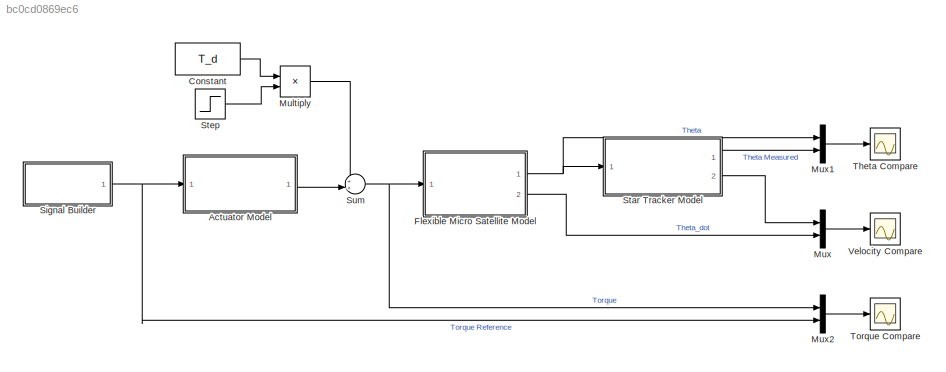
MODEL slx_bc0cd0869ec6
KIND model
CONFIG AbsTol = auto
CONFIG EnableMultiTasking = off
CONFIG FixedStep = auto
CONFIG MaxStep = auto
CONFIG MinStep = auto
CONFIG RelTol = 1e-3
CONFIG SampleTimeConstraint = Unconstrained
CONFIG Solver = VariableStepAuto
CONFIG SolverName = VariableStepAuto
CONFIG StartTime = 0.0
CONFIG StopTime = 200
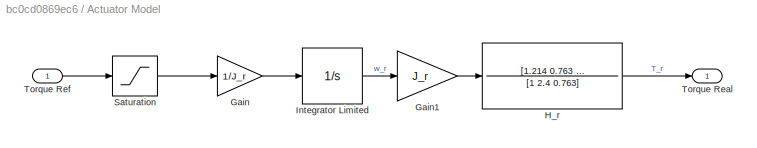
BLOCK [SubSystem] Actuator Model
  Ports = [1, 1]
  RequestExecContextInheritance = off
BLOCK [Gain] Actuator Model/Gain
  Gain = 1/J_r
  OutDataTypeStr = Inherit: Inherit via internal rule
  ParamDataTypeStr = Inherit: Inherit via internal rule
  SaturateOnIntegerOverflow = off
BLOCK [Gain] Actuator Model/Gain1
  Gain = J_r
  OutDataTypeStr = Inherit: Inherit via internal rule
  ParamDataTypeStr = Inherit: Inherit via internal rule
  SaturateOnIntegerOverflow = off
BLOCK [TransferFcn] Actuator Model/H_r
  Denominator = [1 2.4 0.763]
  Numerator = [1.214 0.763 0]
BLOCK [Integrator] Actuator Model/Integrator Limited
  LimitOutput = on
  LowerSaturationLimit = 0
  Ports = [1, 1]
  UpperSaturationLimit = w_sat
BLOCK [Saturate] Actuator Model/Saturation
  InputPortMap = u0
  LowerLimit = -Tc_max
  Ports = [1, 1]
  UpperLimit = Tc_max
BLOCK [Outport] Actuator Model/Torque Real
  IconDisplay = Port number
BLOCK [Inport] Actuator Model/Torque Ref
  IconDisplay = Port number
BLOCK [Constant] Constant
  Value = T_d
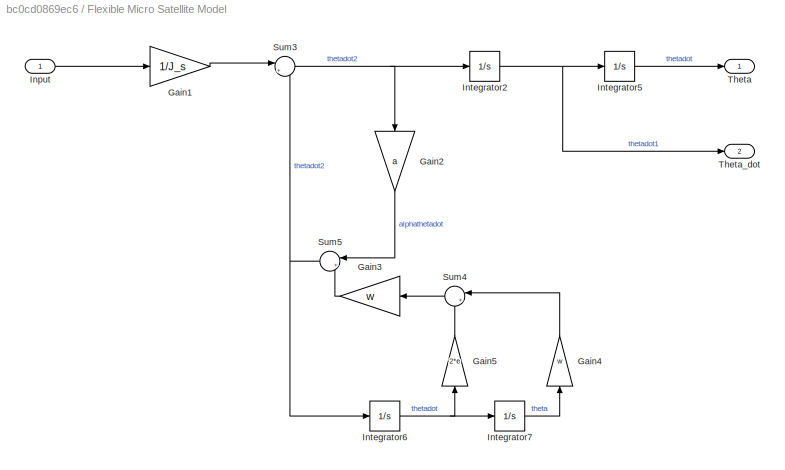
BLOCK [SubSystem] Flexible Micro Satellite Model 
  Ports = [1, 2]
  RequestExecContextInheritance = off
BLOCK [Gain] Flexible Micro Satellite Model /Gain1
  Gain = 1/J_s
  OutDataTypeStr = Inherit: Inherit via internal rule
  ParamDataTypeStr = Inherit: Inherit via internal rule
  SaturateOnIntegerOverflow = off
BLOCK [Gain] Flexible Micro Satellite Model /Gain2
  Gain = a
  OutDataTypeStr = Inherit: Inherit via internal rule
  ParamDataTypeStr = Inherit: Inherit via internal rule
  SaturateOnIntegerOverflow = off
BLOCK [Gain] Flexible Micro Satellite Model /Gain3
  Gain = w
  OutDataTypeStr = Inherit: Inherit via internal rule
  ParamDataTypeStr = Inherit: Inherit via internal rule
  SaturateOnIntegerOverflow = off
BLOCK [Gain] Flexible Micro Satellite Model /Gain4
  Gain = w
  OutDataTypeStr = Inherit: Inherit via internal rule
  ParamDataTypeStr = Inherit: Inherit via internal rule
  SaturateOnIntegerOverflow = off
BLOCK [Gain] Flexible Micro Satellite Model /Gain5
  Gain = 2*e
  OutDataTypeStr = Inherit: Inherit via internal rule
  ParamDataTypeStr = Inherit: Inherit via internal rule
  SaturateOnIntegerOverflow = off
BLOCK [Inport] Flexible Micro Satellite Model /Input
  IconDisplay = Port number
BLOCK [Integrator] Flexible Micro Satellite Model /Integrator2
  Ports = [1, 1]
BLOCK [Integrator] Flexible Micro Satellite Model /Integrator5
  Ports = [1, 1]
BLOCK [Integrator] Flexible Micro Satellite Model /Integrator6
  Ports = [1, 1]
BLOCK [Integrator] Flexible Micro Satellite Model /Integrator7
  Ports = [1, 1]
BLOCK [Sum] Flexible Micro Satellite Model /Sum3
  IconShape = round
  InputSameDT = off
  Inputs = |++
  OutDataTypeStr = Inherit: Inherit via internal rule
  Ports = [2, 1]
  SaturateOnIntegerOverflow = off
BLOCK [Sum] Flexible Micro Satellite Model /Sum4
  IconShape = round
  InputSameDT = off
  Inputs = |++
  OutDataTypeStr = Inherit: Inherit via internal rule
  Ports = [2, 1]
  SaturateOnIntegerOverflow = off
BLOCK [Sum] Flexible Micro Satellite Model /Sum5
  IconShape = round
  InputSameDT = off
  Inputs = |+-
  OutDataTypeStr = Inherit: Inherit via internal rule
  Ports = [2, 1]
  SaturateOnIntegerOverflow = off
BLOCK [Outport] Flexible Micro Satellite Model /Theta
  IconDisplay = Port number
BLOCK [Outport] Flexible Micro Satellite Model /Theta_dot
  IconDisplay = Port number
  Port = 2
BLOCK [Product] Multiply
  InputSameDT = off
  OutDataTypeStr = Inherit: Inherit via internal rule
  Ports = [2, 1]
  RndMeth = Floor
  SaturateOnIntegerOverflow = off
BLOCK [Mux] Mux
  DisplayOption = bar
  Inputs = 2
  Ports = [2, 1]
BLOCK [Mux] Mux1
  DisplayOption = bar
  Inputs = 2
  Ports = [2, 1]
BLOCK [Mux] Mux2
  DisplayOption = bar
  Inputs = 2
  Ports = [2, 1]
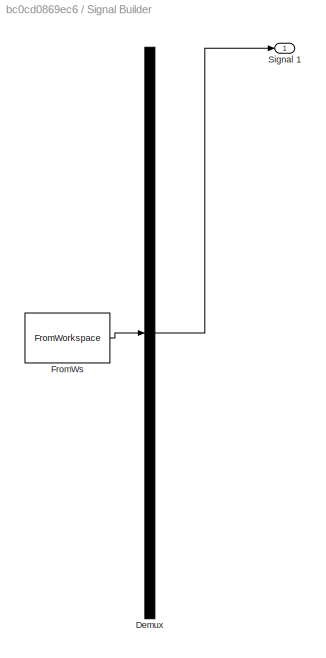
BLOCK [SubSystem] Signal Builder
  ClipboardFcn = sigbuilder_block('clipboard');
  CloseFcn = sigbuilder_block('close');
  ContinueFcn = sigbuilder_block('continue');
  CopyFcn = sigbuilder_block('copy');
  DeleteFcn = sigbuilder_block('delete');
  LoadFcn = sigbuilder_block('load');
  MaskHideContents = on
  ModelCloseFcn = sigbuilder_block('modelClose');
  NameChangeFcn = sigbuilder_block('namechange');
  OpenFcn = sigbuilder_block('open',[6 30 1428 681.75 ]);
  PauseFcn = sigbuilder_block('pause');
  Ports = [0, 1]
  PreSaveFcn = sigbuilder_block('preSave');
  RequestExecContextInheritance = off
  StartFcn = sigbuilder_block('start');
  StopFcn = sigbuilder_block('stop');
  Tag = STV Subsys
BLOCK [Demux] Signal Builder/Demux
  Outputs = 1
  Ports = [1, 1]
  Tag = STV Demux
BLOCK [FromWorkspace] Signal Builder/FromWs
  SampleTime = 0
  Tag = STV FromWs
  VariableName = tuvar
  ZeroCross = on
BLOCK [Outport] Signal Builder/Signal 1
  IconDisplay = Port number
  Tag = STV Outport
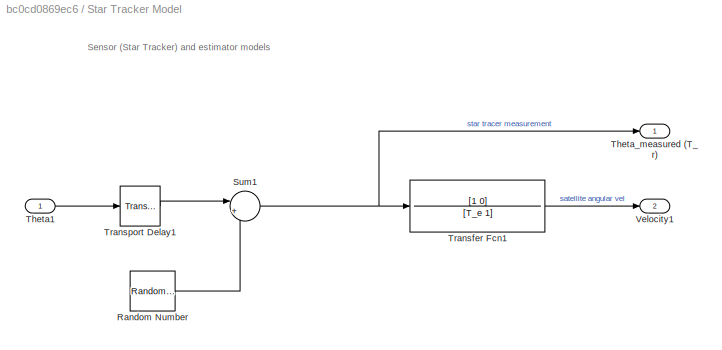
BLOCK [SubSystem] Star Tracker Model
  Ports = [1, 2]
  RequestExecContextInheritance = off
BLOCK [RandomNumber] Star Tracker Model/Random Number
  SampleTime = 0.1
  Variance = noise
BLOCK [Sum] Star Tracker Model/Sum1
  IconShape = round
  InputSameDT = off
  Inputs = |++
  OutDataTypeStr = Inherit: Inherit via internal rule
  Ports = [2, 1]
  SaturateOnIntegerOverflow = off
BLOCK [Inport] Star Tracker Model/Theta1
  IconDisplay = Port number
BLOCK [Outport] Star Tracker Model/Theta_measured (T_r)
  IconDisplay = Port number
BLOCK [TransferFcn] Star Tracker Model/Transfer Fcn1
  Denominator = [T_e 1]
  Numerator = [1 0]
BLOCK [TransportDelay] Star Tracker Model/Transport Delay1
  DelayTime = To_m
  Ports = [1, 1]
BLOCK [Outport] Star Tracker Model/Velocity1
  IconDisplay = Port number
  Port = 2
BLOCK [Step] Step
  SampleTime = 0
  Time = 100
BLOCK [Sum] Sum
  IconShape = round
  InputSameDT = off
  Inputs = ++|
  OutDataTypeStr = Inherit: Inherit via internal rule
  Ports = [2, 1]
  SaturateOnIntegerOverflow = off
BLOCK [Scope] Theta Compare
  Floating = off
  NumInputPorts = 1
  Ports = [1]
  ScopeSpecificationString = Simulink.scopes.TimeScopeBlockCfg('CurrentConfiguration', extmgr.ConfigurationSet(extmgr.Configuration('Core','General UI',true,'FigureColor',[1 1 1]),extmgr.Configuration('Core','Source UI',true),extmgr.Configuration('Sources','WiredSimulink',true,'DataLoggingVariableName','ScopeData1'),extmgr.Configuration('Visuals','Time Domain',true,'SerializedDisplays',{struct('MinYLimReal','-0.04805','MaxYLi...<+1643ch>
BLOCK [Scope] Torque Compare
  Floating = off
  NumInputPorts = 1
  Ports = [1]
  ScopeSpecificationString = Simulink.scopes.TimeScopeBlockCfg('CurrentConfiguration', extmgr.ConfigurationSet(extmgr.Configuration('Core','General UI',true,'FigureColor',[1 1 1]),extmgr.Configuration('Core','Source UI',true),extmgr.Configuration('Sources','WiredSimulink',true,'DataLoggingVariableName','ScopeData2'),extmgr.Configuration('Visuals','Time Domain',true,'SerializedDisplays',{struct('MinYLimReal','-0.00375','MaxYLi...<+1775ch>
BLOCK [Scope] Velocity Compare
  Floating = off
  NumInputPorts = 1
  Ports = [1]
  ScopeSpecificationString = Simulink.scopes.TimeScopeBlockCfg('CurrentConfiguration', extmgr.ConfigurationSet(extmgr.Configuration('Core','General UI',true,'FigureColor',[1 1 1]),extmgr.Configuration('Core','Source UI',true),extmgr.Configuration('Sources','WiredSimulink',true),extmgr.Configuration('Visuals','Time Domain',true,'SerializedDisplays',{struct('MinYLimReal','-0.00071','MaxYLimReal','0.00443','YLabelReal','','MinYL...<+1692ch>
ANNOTATION Star Tracker Model: Sensor (Star Tracker) and estimator models
LINE Actuator Model/Gain1:1 -> Actuator Model/H_r:1
LINE Actuator Model/Gain:1 -> Actuator Model/Integrator Limited:1
LINE Actuator Model/H_r:1 -> Actuator Model/Torque Real:1
LINE Actuator Model/Integrator Limited:1 -> Actuator Model/Gain1:1
LINE Actuator Model/Saturation:1 -> Actuator Model/Gain:1
LINE Actuator Model/Torque Ref:1 -> Actuator Model/Saturation:1
LINE Actuator Model:1 -> Sum:2
LINE Constant:1 -> Multiply:1
LINE Flexible Micro Satellite Model /Gain1:1 -> Flexible Micro Satellite Model /Sum3:1
LINE Flexible Micro Satellite Model /Gain2:1 -> Flexible Micro Satellite Model /Sum5:1
LINE Flexible Micro Satellite Model /Gain3:1 -> Flexible Micro Satellite Model /Sum5:2
LINE Flexible Micro Satellite Model /Gain4:1 -> Flexible Micro Satellite Model /Sum4:1
LINE Flexible Micro Satellite Model /Gain5:1 -> Flexible Micro Satellite Model /Sum4:2
LINE Flexible Micro Satellite Model /Input:1 -> Flexible Micro Satellite Model /Gain1:1
NET Flexible Micro Satellite Model /Integrator2:1 -> Flexible Micro Satellite Model /Integrator5:1, Flexible Micro Satellite Model /Theta_dot:1
LINE Flexible Micro Satellite Model /Integrator5:1 -> Flexible Micro Satellite Model /Theta:1
NET Flexible Micro Satellite Model /Integrator6:1 -> Flexible Micro Satellite Model /Gain5:1, Flexible Micro Satellite Model /Integrator7:1
LINE Flexible Micro Satellite Model /Integrator7:1 -> Flexible Micro Satellite Model /Gain4:1
NET Flexible Micro Satellite Model /Sum3:1 -> Flexible Micro Satellite Model /Gain2:1, Flexible Micro Satellite Model /Integrator2:1
LINE Flexible Micro Satellite Model /Sum4:1 -> Flexible Micro Satellite Model /Gain3:1
NET Flexible Micro Satellite Model /Sum5:1 -> Flexible Micro Satellite Model /Integrator6:1, Flexible Micro Satellite Model /Sum3:2
NET Flexible Micro Satellite Model :1 -> Mux1:1, Star Tracker Model:1
LINE Flexible Micro Satellite Model :2 -> Mux:2
LINE Multiply:1 -> Sum:1
LINE Mux1:1 -> Theta Compare:1
LINE Mux2:1 -> Torque Compare:1
LINE Mux:1 -> Velocity Compare:1
NET Signal Builder:1 -> Actuator Model:1, Mux2:2
LINE Star Tracker Model/Random Number:1 -> Star Tracker Model/Sum1:2
NET Star Tracker Model/Sum1:1 -> Star Tracker Model/Theta_measured (T_r):1, Star Tracker Model/Transfer Fcn1:1
LINE Star Tracker Model/Theta1:1 -> Star Tracker Model/Transport Delay1:1
LINE Star Tracker Model/Transfer Fcn1:1 -> Star Tracker Model/Velocity1:1
LINE Star Tracker Model/Transport Delay1:1 -> Star Tracker Model/Sum1:1
LINE Star Tracker Model:1 -> Mux1:2
LINE Star Tracker Model:2 -> Mux:1
LINE Step:1 -> Multiply:2
NET Sum:1 -> Flexible Micro Satellite Model :1, Mux2:1
note: NET lines group one-source signal fan-out (src -> all destinations, sorted); 1:1 wires keep LINE
